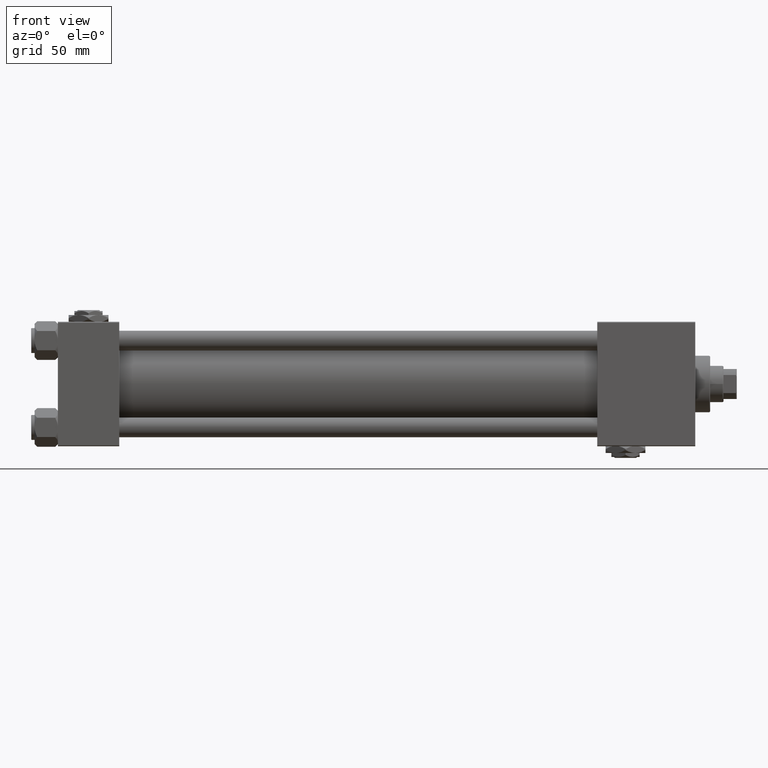
[diagram: clean part render]
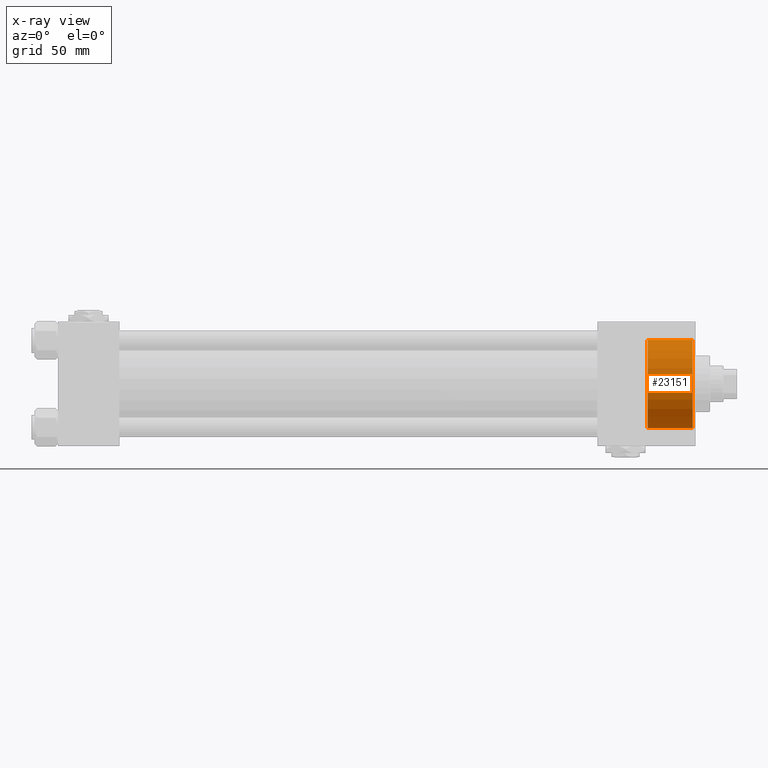
[diagram: x-ray — body ghosted, one internal face saturated and labeled with its STEP entity id]
A machine part, front view, then the same camera in x-ray: the body is ghosted and one INTERNAL B-rep face — a face not visible from any outside direction — is saturated and labeled: STEP entity #23151.
In plain terms, the highlighted cylindrical surface (partial cylindrical patch) has radius 26.5 mm, axis along (1, 0, 0).
Its self-contained STEP definition (entity closure, byte-faithful):
#751 = LINE ( 'NONE', #31679, #953 ) ;
#953 = VECTOR ( 'NONE', #28217, 1000.000000000000000 ) ;
#1796 = CARTESIAN_POINT ( 'NONE',  ( 355.2999999999999545, 0.000000000000000000, 0.000000000000000000 ) ) ;
#2193 = EDGE_CURVE ( 'NONE', #45998, #19832, #13680, .T. ) ;
#4124 = EDGE_CURVE ( 'NONE', #4847, #47055, #15401, .T. ) ;
#4847 = VERTEX_POINT ( 'NONE', #21705 ) ;
#5648 = EDGE_CURVE ( 'NONE', #19832, #47055, #35438, .T. ) ;
#6209 = VECTOR ( 'NONE', #32262, 1000.000000000000000 ) ;
#7754 = AXIS2_PLACEMENT_3D ( 'NONE', #1796, #22382, #27390 ) ;
#8946 = CARTESIAN_POINT ( 'NONE',  ( 382.4999999999998863, 0.000000000000000000, -26.50000000000000355 ) ) ;
#10569 = ORIENTED_EDGE ( 'NONE', *, *, #2193, .F. ) ;
#11545 = DIRECTION ( 'NONE',  ( 1.000000000000000000, -0.000000000000000000, -0.000000000000000000 ) ) ;
#13680 = CIRCLE ( 'NONE', #7754, 26.50000000000000355 ) ;
#15401 = CIRCLE ( 'NONE', #42418, 26.50000000000000355 ) ;
#18479 = AXIS2_PLACEMENT_3D ( 'NONE', #19448, #11545, #52217 ) ;
#18763 = CARTESIAN_POINT ( 'NONE',  ( 355.2999999999999545, 0.000000000000000000, -26.50000000000000355 ) ) ;
#19448 = CARTESIAN_POINT ( 'NONE',  ( 355.2999999999999545, 0.000000000000000000, 0.000000000000000000 ) ) ;
#19488 = CARTESIAN_POINT ( 'NONE',  ( 355.2999999999999545, 3.245314017740486554E-15, 26.50000000000000355 ) ) ;
#19832 = VERTEX_POINT ( 'NONE', #18763 ) ;
#21705 = CARTESIAN_POINT ( 'NONE',  ( 382.4999999999998863, 3.245314017740486554E-15, 26.50000000000000355 ) ) ;
#22382 = DIRECTION ( 'NONE',  ( 1.000000000000000000, 0.000000000000000000, 0.000000000000000000 ) ) ;
#22405 = DIRECTION ( 'NONE',  ( 1.000000000000000000, 0.000000000000000000, 0.000000000000000000 ) ) ;
#23151 = ADVANCED_FACE ( 'NONE', ( #31102 ), #35842, .F. ) ;
#27234 = CARTESIAN_POINT ( 'NONE',  ( 355.2999999999999545, 0.000000000000000000, -26.50000000000000355 ) ) ;
#27390 = DIRECTION ( 'NONE',  ( 0.000000000000000000, 0.000000000000000000, -1.000000000000000000 ) ) ;
#28217 = DIRECTION ( 'NONE',  ( 1.000000000000000000, -0.000000000000000000, -0.000000000000000000 ) ) ;
#31102 = FACE_OUTER_BOUND ( 'NONE', #34030, .T. ) ;
#31679 = CARTESIAN_POINT ( 'NONE',  ( 355.2999999999999545, 3.245314017740486554E-15, 26.50000000000000355 ) ) ;
#31749 = EDGE_CURVE ( 'NONE', #45998, #4847, #751, .T. ) ;
#32262 = DIRECTION ( 'NONE',  ( 1.000000000000000000, -0.000000000000000000, -0.000000000000000000 ) ) ;
#34030 = EDGE_LOOP ( 'NONE', ( #10569, #45960, #44047, #46416 ) ) ;
#35438 = LINE ( 'NONE', #27234, #6209 ) ;
#35842 = CYLINDRICAL_SURFACE ( 'NONE', #18479, 26.50000000000000355 ) ;
#38535 = DIRECTION ( 'NONE',  ( 0.000000000000000000, 0.000000000000000000, 1.000000000000000000 ) ) ;
#41725 = CARTESIAN_POINT ( 'NONE',  ( 382.4999999999998863, 0.000000000000000000, 0.000000000000000000 ) ) ;
#42418 = AXIS2_PLACEMENT_3D ( 'NONE', #41725, #22405, #38535 ) ;
#44047 = ORIENTED_EDGE ( 'NONE', *, *, #4124, .T. ) ;
#45960 = ORIENTED_EDGE ( 'NONE', *, *, #31749, .T. ) ;
#45998 = VERTEX_POINT ( 'NONE', #19488 ) ;
#46416 = ORIENTED_EDGE ( 'NONE', *, *, #5648, .F. ) ;
#47055 = VERTEX_POINT ( 'NONE', #8946 ) ;
#52217 = DIRECTION ( 'NONE',  ( 0.000000000000000000, 0.000000000000000000, -1.000000000000000000 ) ) ;